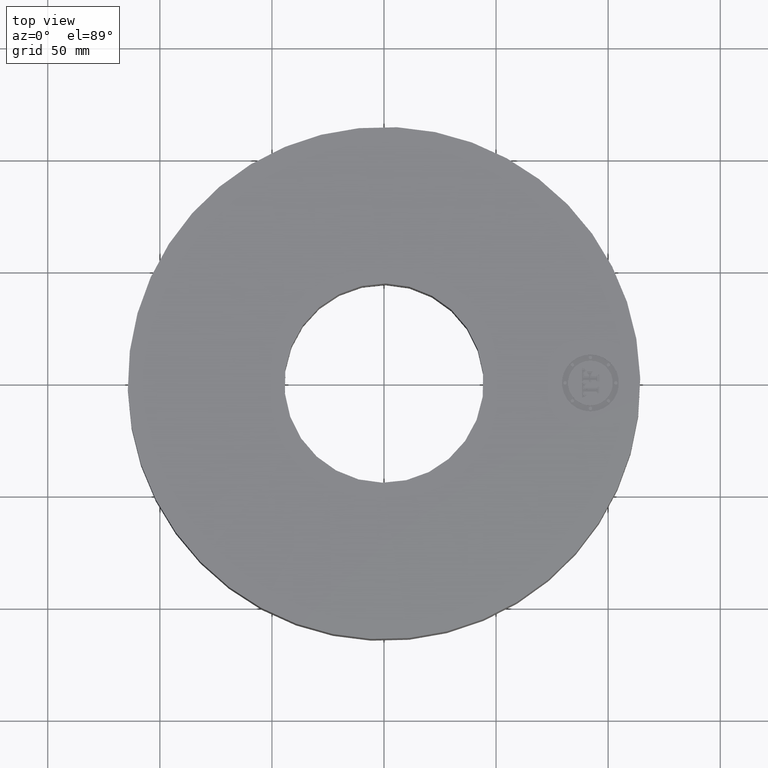
[diagram: clean part render]
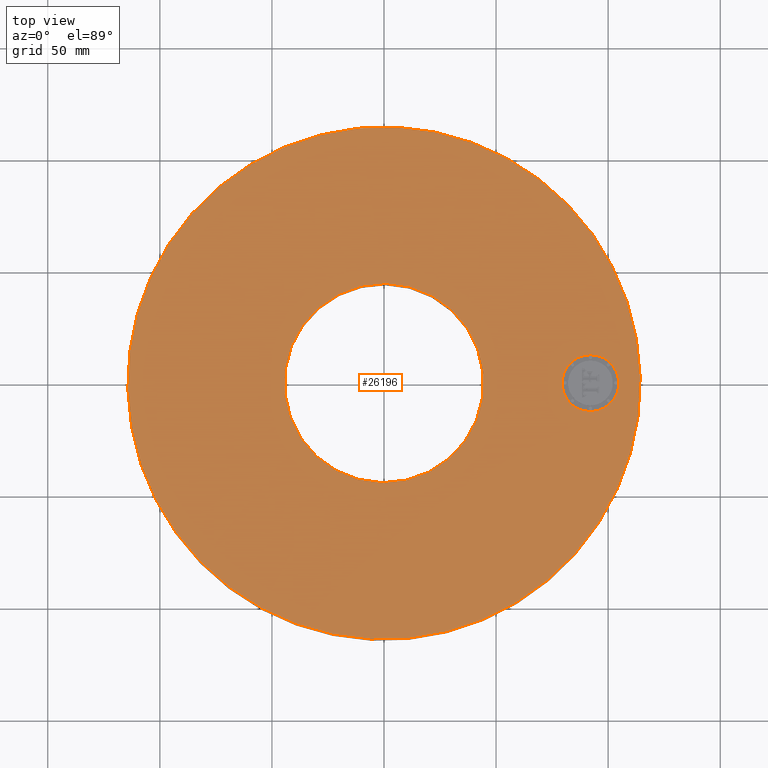
[diagram: same view with one face highlighted and labeled with its STEP entity id]
A machine part, top view. The second image highlights one B-rep face of the part: STEP entity #26196.
In plain terms, the highlighted planar face has unit normal (0, 0, -1).
Its self-contained STEP definition (entity closure, byte-faithful):
#3464=AXIS2_PLACEMENT_3D('Circle Axis2P3D',#3462,#3463,$) ;
#3483=AXIS2_PLACEMENT_3D('Circle Axis2P3D',#3481,#3482,$) ;
#4583=AXIS2_PLACEMENT_3D('Circle Axis2P3D',#4581,#4582,$) ;
#4609=AXIS2_PLACEMENT_3D('Circle Axis2P3D',#4607,#4608,$) ;
#26168=AXIS2_PLACEMENT_3D('Plane Axis2P3D',#26165,#26166,#26167) ;
#26180=AXIS2_PLACEMENT_3D('Circle Axis2P3D',#26178,#26179,$) ;
#26189=AXIS2_PLACEMENT_3D('Circle Axis2P3D',#26187,#26188,$) ;
#3459=CARTESIAN_POINT('Vertex',(-2.15741492373,-3.94912152852,1.75000000001)) ;
#3462=CARTESIAN_POINT('Axis2P3D Location',(0.,0.,1.75000000001)) ;
#3466=CARTESIAN_POINT('Vertex',(2.15741492373,3.94912152852,1.75000000001)) ;
#3481=CARTESIAN_POINT('Axis2P3D Location',(0.,0.,1.75000000001)) ;
#4581=CARTESIAN_POINT('Axis2P3D Location',(0.,0.,1.75000000001)) ;
#4585=CARTESIAN_POINT('Vertex',(0.838994692561,1.53576948331,1.75000000001)) ;
#4587=CARTESIAN_POINT('Vertex',(-0.838994692561,-1.53576948331,1.75000000001)) ;
#4607=CARTESIAN_POINT('Axis2P3D Location',(0.,0.,1.75000000001)) ;
#26165=CARTESIAN_POINT('Axis2P3D Location',(0.,1.75000000001,1.75000000001)) ;
#26178=CARTESIAN_POINT('Axis2P3D Location',(3.62500000001,0.,1.75000000001)) ;
#26182=CARTESIAN_POINT('Vertex',(3.62500000001,-0.499999995002,1.75000000001)) ;
#26184=CARTESIAN_POINT('Vertex',(3.62500000001,0.499999995002,1.75000000001)) ;
#26187=CARTESIAN_POINT('Axis2P3D Location',(3.62500000001,0.,1.75000000001)) ;
#3463=DIRECTION('Axis2P3D Direction',(0.,0.,-0.0393700787402)) ;
#3482=DIRECTION('Axis2P3D Direction',(0.,0.,-0.0393700787402)) ;
#4582=DIRECTION('Axis2P3D Direction',(0.,0.,-0.0393700787402)) ;
#4608=DIRECTION('Axis2P3D Direction',(0.,0.,-0.0393700787402)) ;
#26166=DIRECTION('Axis2P3D Direction',(0.,0.,-0.0393700787402)) ;
#26167=DIRECTION('Axis2P3D XDirection',(0.0393700787402,0.,0.)) ;
#26179=DIRECTION('Axis2P3D Direction',(0.,0.,-0.0393700787402)) ;
#26188=DIRECTION('Axis2P3D Direction',(0.,0.,-0.0393700787402)) ;
#26171=ORIENTED_EDGE('',*,*,#3485,.F.) ;
#26172=ORIENTED_EDGE('',*,*,#3468,.F.) ;
#26175=ORIENTED_EDGE('',*,*,#4611,.T.) ;
#26176=ORIENTED_EDGE('',*,*,#4589,.T.) ;
#26193=ORIENTED_EDGE('',*,*,#26186,.F.) ;
#26194=ORIENTED_EDGE('',*,*,#26191,.F.) ;
#26177=FACE_BOUND('',#26174,.T.) ;
#26195=FACE_BOUND('',#26192,.T.) ;
#26196=ADVANCED_FACE('PartBody',(#26173,#26177,#26195),#26169,.F.) ;
#3465=CIRCLE('generated circle',#3464,4.50000000002) ;
#3484=CIRCLE('generated circle',#3483,4.50000000002) ;
#4584=CIRCLE('generated circle',#4583,1.75000000001) ;
#4610=CIRCLE('generated circle',#4609,1.75000000001) ;
#26181=CIRCLE('generated circle',#26180,0.499999995002) ;
#26190=CIRCLE('generated circle',#26189,0.499999995002) ;
#3468=EDGE_CURVE('',#3460,#3467,#3465,.T.) ;
#3485=EDGE_CURVE('',#3467,#3460,#3484,.T.) ;
#4589=EDGE_CURVE('',#4586,#4588,#4584,.T.) ;
#4611=EDGE_CURVE('',#4588,#4586,#4610,.T.) ;
#26186=EDGE_CURVE('',#26183,#26185,#26181,.F.) ;
#26191=EDGE_CURVE('',#26185,#26183,#26190,.F.) ;
#26170=EDGE_LOOP('',(#26171,#26172)) ;
#26174=EDGE_LOOP('',(#26175,#26176)) ;
#26192=EDGE_LOOP('',(#26193,#26194)) ;
#26173=FACE_OUTER_BOUND('',#26170,.T.) ;
#26169=PLANE('',#26168) ;
#3460=VERTEX_POINT('',#3459) ;
#3467=VERTEX_POINT('',#3466) ;
#4586=VERTEX_POINT('',#4585) ;
#4588=VERTEX_POINT('',#4587) ;
#26183=VERTEX_POINT('',#26182) ;
#26185=VERTEX_POINT('',#26184) ;